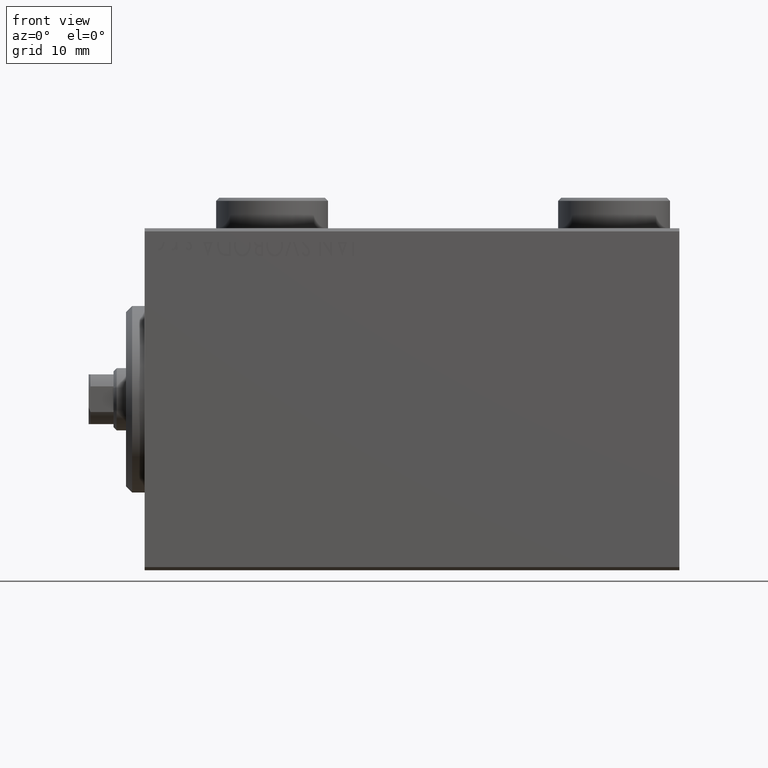
[diagram: clean part render]
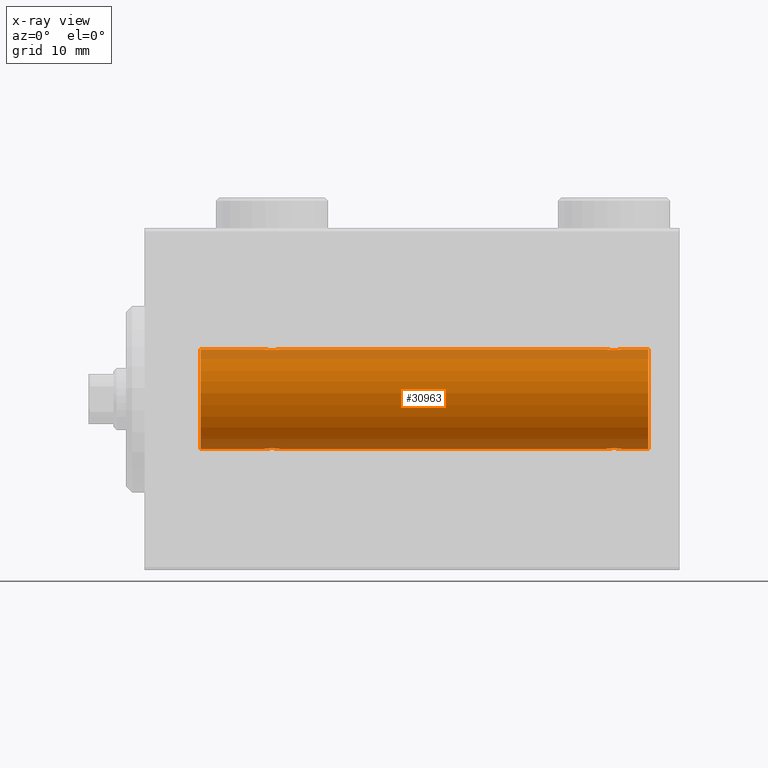
[diagram: x-ray — body ghosted, one internal face saturated and labeled with its STEP entity id]
A machine part, front view, then the same camera in x-ray: the body is ghosted and one INTERNAL B-rep face — a face not visible from any outside direction — is saturated and labeled: STEP entity #30963.
In plain terms, the highlighted cylindrical surface (partial cylindrical patch) has radius 8 mm, axis along (-1, -0, -0).
Its self-contained STEP definition (entity closure, byte-faithful):
#119 = CARTESIAN_POINT ( 'NONE',  ( 76.74999999999998579, -0.1654128203352888959, 7.999999999999998224 ) ) ;
#355 = CARTESIAN_POINT ( 'NONE',  ( 76.12943792732230008, -1.092287957405119414, 7.925333492638526600 ) ) ;
#391 = CARTESIAN_POINT ( 'NONE',  ( 21.26267005793691212, -0.9937204387496720859, -7.938174152191990629 ) ) ;
#537 = EDGE_CURVE ( 'NONE', #22121, #30311, #33041, .T. ) ;
#877 = CARTESIAN_POINT ( 'NONE',  ( 19.25000000000000711, -3.107364149877583097E-15, -7.999999999999998224 ) ) ;
#983 = CARTESIAN_POINT ( 'NONE',  ( 81.00000000000000000, 0.000000000000000000, 7.999999999999998224 ) ) ;
#1488 = CARTESIAN_POINT ( 'NONE',  ( 81.00000000000000000, 9.797174393178823685E-16, -7.999999999999998224 ) ) ;
#1603 = CARTESIAN_POINT ( 'NONE',  ( 76.05544625654724200, -1.122809931695437413, -7.920878051565288125 ) ) ;
#1896 = EDGE_LOOP ( 'NONE', ( #42678, #45557, #40563, #23950, #7310, #21886, #28093, #39341, #28413, #40206, #16050, #33138 ) ) ;
#2185 = VECTOR ( 'NONE', #14876, 1000.000000000000000 ) ;
#2280 = VECTOR ( 'NONE', #37390, 1000.000000000000000 ) ;
#2802 = VERTEX_POINT ( 'NONE', #983 ) ;
#3346 = CARTESIAN_POINT ( 'NONE',  ( 75.82701716371747125, -1.217515856520240192, 7.907063872927293957 ) ) ;
#3433 = VERTEX_POINT ( 'NONE', #877 ) ;
#4754 = CARTESIAN_POINT ( 'NONE',  ( 19.25000000000000000, -4.052102368803510290E-23, 7.999999999999998224 ) ) ;
#4826 = CARTESIAN_POINT ( 'NONE',  ( 76.75000000000001421, -0.1632520343443081834, -8.000000000000000000 ) ) ;
#4882 = DIRECTION ( 'NONE',  ( -1.000000000000000000, -0.000000000000000000, -0.000000000000000000 ) ) ;
#4954 = DIRECTION ( 'NONE',  ( 0.000000000000000000, 0.000000000000000000, 1.000000000000000000 ) ) ;
#6089 = VERTEX_POINT ( 'NONE', #32417 ) ;
#6550 = CARTESIAN_POINT ( 'NONE',  ( 21.71666607977187269, -0.3297258132310499357, 7.994620111903506299 ) ) ;
#6607 = CARTESIAN_POINT ( 'NONE',  ( 19.25000000000000711, -3.107364149877583097E-15, -7.999999999999998224 ) ) ;
#6783 = CARTESIAN_POINT ( 'NONE',  ( 21.49841755665748622, -0.7695044314719063916, 7.963745725343518878 ) ) ;
#6798 = CARTESIAN_POINT ( 'NONE',  ( 76.59165033467904493, -0.6303134207467974148, 7.976551562999476985 ) ) ;
#7023 = CARTESIAN_POINT ( 'NONE',  ( 76.71666607977185492, -0.3297258132310484924, 7.994620111903502746 ) ) ;
#7064 = CARTESIAN_POINT ( 'NONE',  ( 20.33559448851098850, -1.250104850332076634, -7.901723728054487417 ) ) ;
#7310 = ORIENTED_EDGE ( 'NONE', *, *, #14707, .T. ) ;
#7432 = DIRECTION ( 'NONE',  ( 0.000000000000000000, 0.000000000000000000, 1.000000000000000000 ) ) ;
#7724 = CARTESIAN_POINT ( 'NONE',  ( 81.00000000000000000, 9.797174393178823685E-16, -7.999999999999998224 ) ) ;
#8756 = DIRECTION ( 'NONE',  ( 0.000000000000000000, 0.000000000000000000, 1.000000000000000000 ) ) ;
#8887 = CARTESIAN_POINT ( 'NONE',  ( 19.40749082144729343, -0.6288424646912651461, 7.976670562295706368 ) ) ;
#9153 = B_SPLINE_CURVE_WITH_KNOTS ( 'NONE', 3,
 ( #4754, #12370, #40416, #8887, #23180, #37185, #18826, #32856, #15383, #29429, #38305, #23622, #27776, #34409, #44536, #6783, #20170, #6550, #9328, #20849 ),
 .UNSPECIFIED., .F., .F.,
 ( 4, 2, 2, 2, 2, 2, 2, 2, 2, 4 ),
 ( 0.003914068143704974717, 0.004403205918210087270, 0.004892343692715199824, 0.005136912579967756534, 0.005381481467220313245, 0.005870619241725426665, 0.006359757016230540086, 0.006848894790735652639, 0.007338032565240766060, 0.007827170339745878613 ),
 .UNSPECIFIED. ) ;
#9238 = VECTOR ( 'NONE', #36242, 1000.000000000000000 ) ;
#9310 = LINE ( 'NONE', #16034, #2280 ) ;
#9328 = CARTESIAN_POINT ( 'NONE',  ( 21.75000000000000711, -0.1654128203352893955, 8.000000000000001776 ) ) ;
#9391 = VERTEX_POINT ( 'NONE', #26411 ) ;
#10487 = CARTESIAN_POINT ( 'NONE',  ( 74.40749082144729698, -0.6288424646912691429, 7.976670562295704592 ) ) ;
#10527 = CARTESIAN_POINT ( 'NONE',  ( 21.05544625654724200, -1.122809931695431640, -7.920878051565290789 ) ) ;
#10721 = B_SPLINE_CURVE_WITH_KNOTS ( 'NONE', 3,
 ( #41999, #31227, #16956, #10487, #27559, #35327, #31914, #41326, #24550, #31679, #38778, #31001, #3346, #355, #28252, #20408, #6798, #7023, #119, #21319 ),
 .UNSPECIFIED., .F., .F.,
 ( 4, 2, 2, 2, 2, 2, 2, 2, 2, 4 ),
 ( 0.003914068143704953900, 0.004403205918210113291, 0.004892343692715272682, 0.005136912579967838066, 0.005381481467220403450, 0.005870619241725495187, 0.006359757016230586923, 0.006848894790735679527, 0.007338032565240772132, 0.007827170339745864736 ),
 .UNSPECIFIED. ) ;
#11168 = VERTEX_POINT ( 'NONE', #32584 ) ;
#11292 = CARTESIAN_POINT ( 'NONE',  ( 74.28333392022811665, -0.3297258132310611489, -7.994620111903500970 ) ) ;
#11826 = LINE ( 'NONE', #26113, #16747 ) ;
#12050 = LINE ( 'NONE', #22865, #29795 ) ;
#12215 = CARTESIAN_POINT ( 'NONE',  ( 74.25000000000001421, -1.276489185009471567E-14, -7.999999999999998224 ) ) ;
#12370 = CARTESIAN_POINT ( 'NONE',  ( 19.25000000000000355, -0.1632520343443079336, 8.000000000000000000 ) ) ;
#12612 = CARTESIAN_POINT ( 'NONE',  ( 74.25000000000001421, -4.052102368803510290E-23, 7.999999999999998224 ) ) ;
#13547 = CARTESIAN_POINT ( 'NONE',  ( 19.25000000000000711, -0.1654128203352910609, -7.999999999999998224 ) ) ;
#13769 = CARTESIAN_POINT ( 'NONE',  ( 21.32687899779140750, -0.9409612394163509030, -7.944680966683015377 ) ) ;
#14233 = CARTESIAN_POINT ( 'NONE',  ( 21.75000000000000355, -0.1632520343443068511, -7.999999999999998224 ) ) ;
#14460 = CARTESIAN_POINT ( 'NONE',  ( 19.28333392022813797, -0.3297258132310537104, -7.994620111903500970 ) ) ;
#14668 = CYLINDRICAL_SURFACE ( 'NONE', #25602, 7.999999999999998224 ) ;
#14707 = EDGE_CURVE ( 'NONE', #30311, #3433, #36158, .T. ) ;
#14756 = CARTESIAN_POINT ( 'NONE',  ( 75.17298283628255717, -1.217515856520248407, -7.907063872927295733 ) ) ;
#14775 = CARTESIAN_POINT ( 'NONE',  ( 8.999999999999994671, 0.000000000000000000, 0.000000000000000000 ) ) ;
#14876 = DIRECTION ( 'NONE',  ( -1.000000000000000000, -0.000000000000000000, -0.000000000000000000 ) ) ;
#14993 = CARTESIAN_POINT ( 'NONE',  ( 76.75000000000001421, 9.797173987969553159E-16, -7.999999999999998224 ) ) ;
#15082 = VERTEX_POINT ( 'NONE', #17163 ) ;
#15383 = CARTESIAN_POINT ( 'NONE',  ( 19.94455374345276155, -1.122809931695431640, 7.920878051565288125 ) ) ;
#16034 = CARTESIAN_POINT ( 'NONE',  ( 81.00000000000000000, 0.000000000000000000, 7.999999999999998224 ) ) ;
#16050 = ORIENTED_EDGE ( 'NONE', *, *, #17629, .T. ) ;
#16620 = CARTESIAN_POINT ( 'NONE',  ( 8.999999999999994671, 9.797174393178823685E-16, -7.999999999999998224 ) ) ;
#16747 = VECTOR ( 'NONE', #25885, 1000.000000000000000 ) ;
#16956 = CARTESIAN_POINT ( 'NONE',  ( 74.28284287980513056, -0.3279446529214929407, 7.994696267489723951 ) ) ;
#17163 = CARTESIAN_POINT ( 'NONE',  ( 76.75000000000001421, 9.797173987969553159E-16, -7.999999999999998224 ) ) ;
#17629 = EDGE_CURVE ( 'NONE', #18450, #9391, #10721, .T. ) ;
#17905 = CARTESIAN_POINT ( 'NONE',  ( 21.75000000000000355, 9.797173987965608855E-16, -7.999999999999998224 ) ) ;
#18133 = EDGE_CURVE ( 'NONE', #3433, #18182, #12050, .T. ) ;
#18182 = VERTEX_POINT ( 'NONE', #16620 ) ;
#18202 = CARTESIAN_POINT ( 'NONE',  ( 74.25000000000002842, -0.1654128203353027737, -7.999999999999996447 ) ) ;
#18359 = VERTEX_POINT ( 'NONE', #22762 ) ;
#18432 = CARTESIAN_POINT ( 'NONE',  ( 76.49958686675914521, -0.7680324342712141483, -7.963892330120035723 ) ) ;
#18450 = VERTEX_POINT ( 'NONE', #12612 ) ;
#18826 = CARTESIAN_POINT ( 'NONE',  ( 19.73732994206309499, -0.9937204387496718638, 7.938174152191987076 ) ) ;
#19030 = DIRECTION ( 'NONE',  ( -1.000000000000000000, -0.000000000000000000, -0.000000000000000000 ) ) ;
#19396 = CARTESIAN_POINT ( 'NONE',  ( 74.25000000000001421, -1.276489185009471567E-14, -7.999999999999998224 ) ) ;
#20170 = CARTESIAN_POINT ( 'NONE',  ( 21.59165033467900940, -0.6303134207467964156, 7.976551562999473433 ) ) ;
#20408 = CARTESIAN_POINT ( 'NONE',  ( 76.49841755665750043, -0.7695044314719109435, 7.963745725343518878 ) ) ;
#20823 = EDGE_CURVE ( 'NONE', #6089, #22816, #9153, .T. ) ;
#20849 = CARTESIAN_POINT ( 'NONE',  ( 21.75000000000000355, 2.367508772235555199E-16, 7.999999999999998224 ) ) ;
#21133 = CARTESIAN_POINT ( 'NONE',  ( 19.87056207267771413, -1.092287957405118970, -7.925333492638526600 ) ) ;
#21319 = CARTESIAN_POINT ( 'NONE',  ( 76.75000000000001421, 3.826567769925454797E-16, 7.999999999999998224 ) ) ;
#21780 = EDGE_CURVE ( 'NONE', #18450, #22816, #26149, .T. ) ;
#21886 = ORIENTED_EDGE ( 'NONE', *, *, #18133, .T. ) ;
#21896 = CARTESIAN_POINT ( 'NONE',  ( 74.73184514123552447, -0.9994562523959246159, -7.938165420771276182 ) ) ;
#22121 = VERTEX_POINT ( 'NONE', #19396 ) ;
#22126 = CARTESIAN_POINT ( 'NONE',  ( 75.66599605016013186, -1.249894643705230068, -7.901756981264361102 ) ) ;
#22612 = AXIS2_PLACEMENT_3D ( 'NONE', #35278, #24964, #7432 ) ;
#22650 = AXIS2_PLACEMENT_3D ( 'NONE', #14775, #35906, #8756 ) ;
#22762 = CARTESIAN_POINT ( 'NONE',  ( 81.00000000000000000, 9.797174393178823685E-16, -7.999999999999998224 ) ) ;
#22816 = VERTEX_POINT ( 'NONE', #44517 ) ;
#22865 = CARTESIAN_POINT ( 'NONE',  ( 81.00000000000000000, 9.797174393178823685E-16, -7.999999999999998224 ) ) ;
#23180 = CARTESIAN_POINT ( 'NONE',  ( 19.50041313324087611, -0.7680324342712182561, 7.963892330120039276 ) ) ;
#23622 = CARTESIAN_POINT ( 'NONE',  ( 20.66440551148902571, -1.250104850332075523, 7.901723728054487417 ) ) ;
#23950 = ORIENTED_EDGE ( 'NONE', *, *, #537, .T. ) ;
#24361 = CARTESIAN_POINT ( 'NONE',  ( 21.49958686675913810, -0.7680324342712174790, -7.963892330120039276 ) ) ;
#24550 = CARTESIAN_POINT ( 'NONE',  ( 74.94455374345278642, -1.122809931695436525, 7.920878051565286349 ) ) ;
#24822 = CARTESIAN_POINT ( 'NONE',  ( 20.66599605016009988, -1.249894643705219854, -7.901756981264366431 ) ) ;
#24964 = DIRECTION ( 'NONE',  ( -1.000000000000000000, 0.000000000000000000, 0.000000000000000000 ) ) ;
#25265 = DIRECTION ( 'NONE',  ( -1.000000000000000000, -0.000000000000000000, -0.000000000000000000 ) ) ;
#25359 = CARTESIAN_POINT ( 'NONE',  ( 74.40834966532098349, -0.6303134207468096273, -7.976551562999471656 ) ) ;
#25602 = AXIS2_PLACEMENT_3D ( 'NONE', #43393, #19030, #4954 ) ;
#25814 = CARTESIAN_POINT ( 'NONE',  ( 76.26267005793691567, -0.9937204387496841873, -7.938174152191988853 ) ) ;
#25885 = DIRECTION ( 'NONE',  ( -1.000000000000000000, -0.000000000000000000, -0.000000000000000000 ) ) ;
#26045 = CARTESIAN_POINT ( 'NONE',  ( 75.33559448851102047, -1.250104850332087736, -7.901723728054487417 ) ) ;
#26113 = CARTESIAN_POINT ( 'NONE',  ( 81.00000000000000000, 0.000000000000000000, 7.999999999999998224 ) ) ;
#26149 = LINE ( 'NONE', #37138, #9238 ) ;
#26411 = CARTESIAN_POINT ( 'NONE',  ( 76.75000000000001421, 3.826567769925454797E-16, 7.999999999999998224 ) ) ;
#27559 = CARTESIAN_POINT ( 'NONE',  ( 74.50041313324086900, -0.7680324342712208097, 7.963892330120033947 ) ) ;
#27776 = CARTESIAN_POINT ( 'NONE',  ( 20.82701716371747480, -1.217515856520238637, 7.907063872927298398 ) ) ;
#28093 = ORIENTED_EDGE ( 'NONE', *, *, #30593, .T. ) ;
#28252 = CARTESIAN_POINT ( 'NONE',  ( 76.26815485876451817, -0.9994562523959157341, 7.938165420771272629 ) ) ;
#28413 = ORIENTED_EDGE ( 'NONE', *, *, #20823, .T. ) ;
#29173 = LINE ( 'NONE', #7724, #38033 ) ;
#29380 = EDGE_CURVE ( 'NONE', #18359, #2802, #43896, .T. ) ;
#29429 = CARTESIAN_POINT ( 'NONE',  ( 20.17169333885885862, -1.217212176555599878, 7.907113222863031865 ) ) ;
#29795 = VECTOR ( 'NONE', #4882, 1000.000000000000000 ) ;
#30231 = EDGE_CURVE ( 'NONE', #2802, #9391, #11826, .T. ) ;
#30311 = VERTEX_POINT ( 'NONE', #44906 ) ;
#30593 = EDGE_CURVE ( 'NONE', #18182, #11168, #42474, .T. ) ;
#30963 = ADVANCED_FACE ( 'NONE', ( #43164 ), #14668, .F. ) ;
#31001 = CARTESIAN_POINT ( 'NONE',  ( 75.66440551148903637, -1.250104850332079520, 7.901723728054485640 ) ) ;
#31017 = EDGE_CURVE ( 'NONE', #18359, #15082, #29173, .T. ) ;
#31227 = CARTESIAN_POINT ( 'NONE',  ( 74.25000000000001421, -0.1632520343443091548, 7.999999999999998224 ) ) ;
#31679 = CARTESIAN_POINT ( 'NONE',  ( 75.17169333885887283, -1.217212176555603431, 7.907113222863028312 ) ) ;
#31914 = CARTESIAN_POINT ( 'NONE',  ( 74.73732994206311275, -0.9937204387496767488, 7.938174152191988853 ) ) ;
#31954 = CARTESIAN_POINT ( 'NONE',  ( 20.17298283628253230, -1.217515856520239970, -7.907063872927298398 ) ) ;
#32417 = CARTESIAN_POINT ( 'NONE',  ( 19.25000000000000000, -4.052102368803510290E-23, 7.999999999999998224 ) ) ;
#32584 = CARTESIAN_POINT ( 'NONE',  ( 8.999999999999994671, 0.000000000000000000, 7.999999999999998224 ) ) ;
#32856 = CARTESIAN_POINT ( 'NONE',  ( 19.87285837165014613, -1.084361243153319387, 7.926301147147063908 ) ) ;
#32932 = CARTESIAN_POINT ( 'NONE',  ( 76.32687899779143947, -0.9409612394163503479, -7.944680966683013601 ) ) ;
#33041 = LINE ( 'NONE', #1488, #2185 ) ;
#33138 = ORIENTED_EDGE ( 'NONE', *, *, #30231, .F. ) ;
#33158 = CARTESIAN_POINT ( 'NONE',  ( 74.50158244334251378, -0.7695044314719188261, -7.963745725343513548 ) ) ;
#34409 = CARTESIAN_POINT ( 'NONE',  ( 21.12943792732229298, -1.092287957405117194, 7.925333492638530153 ) ) ;
#34690 = CARTESIAN_POINT ( 'NONE',  ( 19.50158244334252089, -0.7695044314719098333, -7.963745725343515325 ) ) ;
#34841 = B_SPLINE_CURVE_WITH_KNOTS ( 'NONE', 3,
 ( #14993, #4826, #39585, #36123, #18432, #32932, #25814, #43265, #1603, #36594, #22126, #26045, #14756, #36361, #21896, #33158, #25359, #11292, #18202, #12215 ),
 .UNSPECIFIED., .F., .F.,
 ( 4, 2, 2, 2, 2, 2, 2, 2, 2, 4 ),
 ( 0.003914068143704947829, 0.004403205918210036963, 0.004892343692715126965, 0.005136912579967671533, 0.005381481467220216100, 0.005870619241725345133, 0.006359757016230472432, 0.006848894790735599730, 0.007338032565240728763, 0.007827170339745857797 ),
 .UNSPECIFIED. ) ;
#35141 = CARTESIAN_POINT ( 'NONE',  ( 19.73184514123549249, -0.9994562523959139577, -7.938165420771276182 ) ) ;
#35278 = CARTESIAN_POINT ( 'NONE',  ( 81.00000000000000000, 0.000000000000000000, 0.000000000000000000 ) ) ;
#35327 = CARTESIAN_POINT ( 'NONE',  ( 74.67312100220860316, -0.9409612394163545668, 7.944680966683010936 ) ) ;
#35906 = DIRECTION ( 'NONE',  ( -1.000000000000000000, 0.000000000000000000, 0.000000000000000000 ) ) ;
#36123 = CARTESIAN_POINT ( 'NONE',  ( 76.59250917855271723, -0.6288424646912651461, -7.976670562295706368 ) ) ;
#36158 = B_SPLINE_CURVE_WITH_KNOTS ( 'NONE', 3,
 ( #17905, #14233, #45050, #45276, #24361, #13769, #391, #42263, #10527, #38134, #24822, #7064, #31954, #21133, #35141, #34690, #38818, #14460, #13547, #6607 ),
 .UNSPECIFIED., .F., .F.,
 ( 4, 2, 2, 2, 2, 2, 2, 2, 2, 4 ),
 ( 0.003914068143704951298, 0.004403205918210062117, 0.004892343692715172936, 0.005136912579967725309, 0.005381481467220276815, 0.005870619241725390236, 0.006359757016230503657, 0.006848894790735617077, 0.007338032565240730498, 0.007827170339745843919 ),
 .UNSPECIFIED. ) ;
#36242 = DIRECTION ( 'NONE',  ( -1.000000000000000000, -0.000000000000000000, -0.000000000000000000 ) ) ;
#36361 = CARTESIAN_POINT ( 'NONE',  ( 74.87056207267772834, -1.092287957405127408, -7.925333492638528377 ) ) ;
#36594 = CARTESIAN_POINT ( 'NONE',  ( 75.82830666114118401, -1.217212176555608094, -7.907113222863028312 ) ) ;
#37138 = CARTESIAN_POINT ( 'NONE',  ( 81.00000000000000000, 0.000000000000000000, 7.999999999999998224 ) ) ;
#37185 = CARTESIAN_POINT ( 'NONE',  ( 19.67312100220859605, -0.9409612394163517912, 7.944680966683013601 ) ) ;
#37390 = DIRECTION ( 'NONE',  ( -1.000000000000000000, -0.000000000000000000, -0.000000000000000000 ) ) ;
#38033 = VECTOR ( 'NONE', #25265, 1000.000000000000000 ) ;
#38134 = CARTESIAN_POINT ( 'NONE',  ( 20.82830666114114848, -1.217212176555599434, -7.907113222863026536 ) ) ;
#38305 = CARTESIAN_POINT ( 'NONE',  ( 20.33400394983990722, -1.249894643705219410, 7.901756981264364654 ) ) ;
#38615 = EDGE_CURVE ( 'NONE', #15082, #22121, #34841, .T. ) ;
#38778 = CARTESIAN_POINT ( 'NONE',  ( 75.33400394983992499, -1.249894643705222297, 7.901756981264366431 ) ) ;
#38818 = CARTESIAN_POINT ( 'NONE',  ( 19.40834966532100481, -0.6303134207467991912, -7.976551562999473433 ) ) ;
#39341 = ORIENTED_EDGE ( 'NONE', *, *, #44440, .F. ) ;
#39585 = CARTESIAN_POINT ( 'NONE',  ( 76.71715712019489786, -0.3279446529214858908, -7.994696267489722175 ) ) ;
#40206 = ORIENTED_EDGE ( 'NONE', *, *, #21780, .F. ) ;
#40416 = CARTESIAN_POINT ( 'NONE',  ( 19.28284287980512346, -0.3279446529214880002, 7.994696267489722175 ) ) ;
#40563 = ORIENTED_EDGE ( 'NONE', *, *, #38615, .T. ) ;
#41326 = CARTESIAN_POINT ( 'NONE',  ( 74.87285837165016744, -1.084361243153322940, 7.926301147147063908 ) ) ;
#41999 = CARTESIAN_POINT ( 'NONE',  ( 74.25000000000001421, -4.052102368803510290E-23, 7.999999999999998224 ) ) ;
#42263 = CARTESIAN_POINT ( 'NONE',  ( 21.12714162834985387, -1.084361243153318721, -7.926301147147063908 ) ) ;
#42474 = CIRCLE ( 'NONE', #22650, 7.999999999999998224 ) ;
#42678 = ORIENTED_EDGE ( 'NONE', *, *, #29380, .F. ) ;
#43164 = FACE_OUTER_BOUND ( 'NONE', #1896, .T. ) ;
#43265 = CARTESIAN_POINT ( 'NONE',  ( 76.12714162834984677, -1.084361243153331378, -7.926301147147065684 ) ) ;
#43393 = CARTESIAN_POINT ( 'NONE',  ( 81.00000000000000000, 0.000000000000000000, 0.000000000000000000 ) ) ;
#43896 = CIRCLE ( 'NONE', #22612, 7.999999999999998224 ) ;
#44440 = EDGE_CURVE ( 'NONE', #6089, #11168, #9310, .T. ) ;
#44517 = CARTESIAN_POINT ( 'NONE',  ( 21.75000000000000355, 2.367508772235555199E-16, 7.999999999999998224 ) ) ;
#44536 = CARTESIAN_POINT ( 'NONE',  ( 21.26815485876451461, -0.9994562523959116263, 7.938165420771274405 ) ) ;
#44906 = CARTESIAN_POINT ( 'NONE',  ( 21.75000000000000355, 9.797173987965608855E-16, -7.999999999999998224 ) ) ;
#45050 = CARTESIAN_POINT ( 'NONE',  ( 21.71715712019488009, -0.3279446529214856687, -7.994696267489723951 ) ) ;
#45276 = CARTESIAN_POINT ( 'NONE',  ( 21.59250917855271013, -0.6288424646912625926, -7.976670562295708145 ) ) ;
#45557 = ORIENTED_EDGE ( 'NONE', *, *, #31017, .T. ) ;